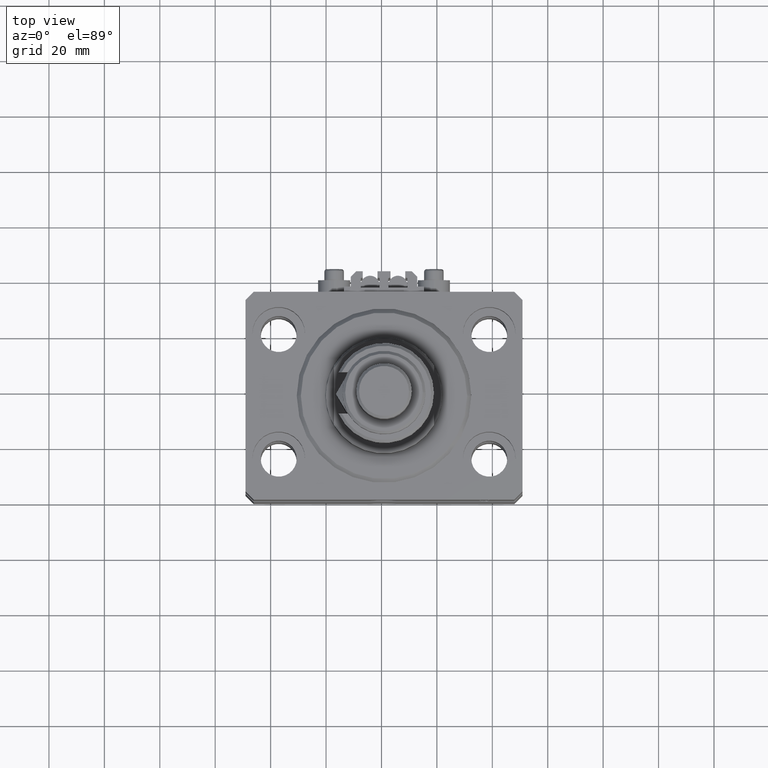
[diagram: clean part render]
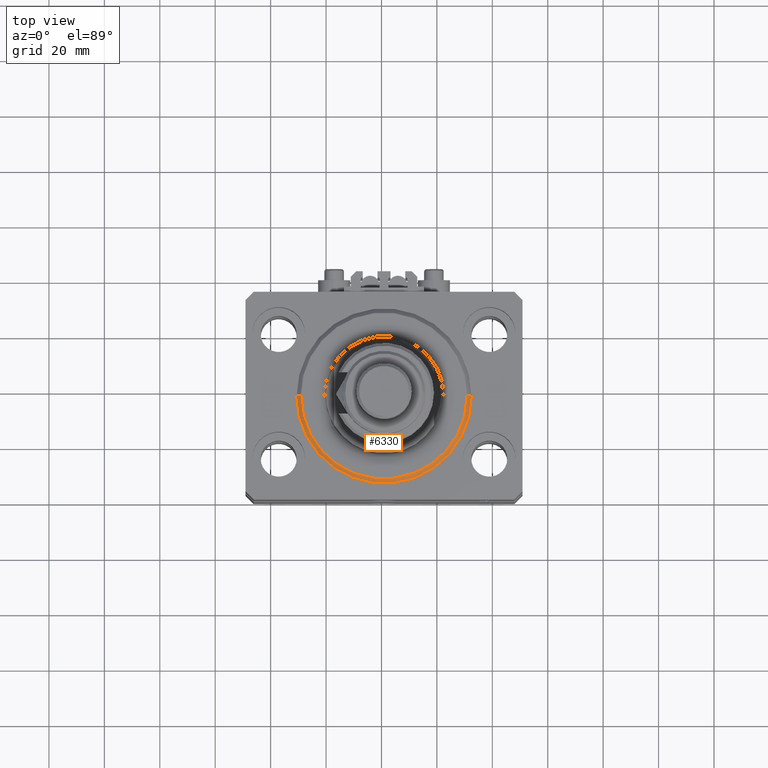
[diagram: same view with one face highlighted and labeled with its STEP entity id]
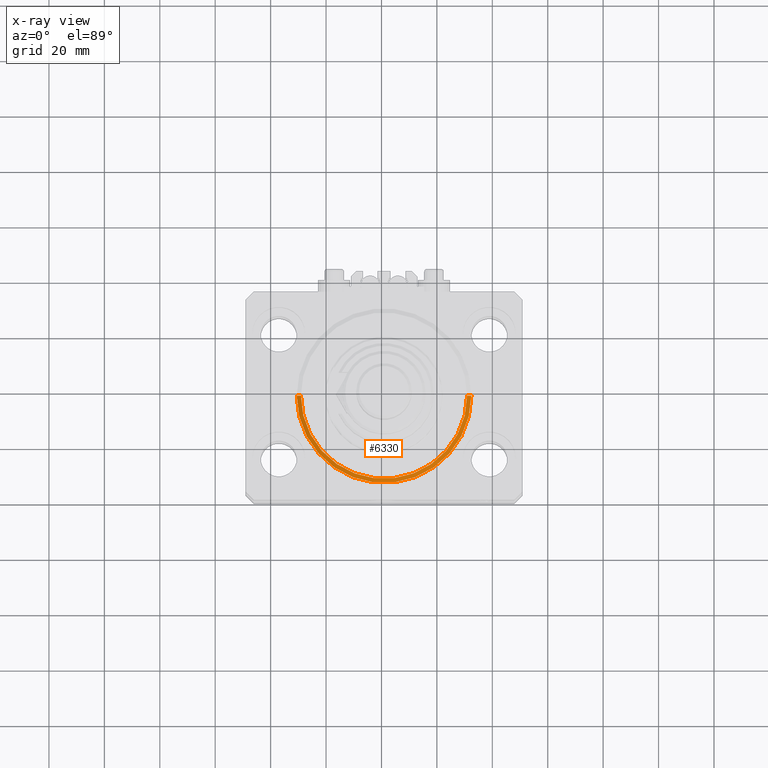
[diagram: x-ray of the same camera — body ghosted, the highlighted face saturated]
A machine part, top view. The second image highlights one B-rep face of the part: STEP entity #6330.
The next image is the same camera in x-ray: the body ghosted, the highlighted face saturated — about 0% of this face is hidden behind the body in this view.
In plain terms, the highlighted conical surface has half-angle 45 deg.
Its self-contained STEP definition (entity closure, byte-faithful):
#317 = DIRECTION ( 'NONE',  ( 1.000000000000000000, 0.000000000000000000, 0.000000000000000000 ) ) ;
#397 = CARTESIAN_POINT ( 'NONE',  ( -30.00000000000002132, 3.765788907378112117E-15, 0.000000000000000000 ) ) ;
#577 = FACE_OUTER_BOUND ( 'NONE', #23349, .T. ) ;
#1385 = EDGE_CURVE ( 'NONE', #14518, #29938, #27072, .T. ) ;
#1493 = VECTOR ( 'NONE', #45209, 1000.000000000000114 ) ;
#2231 = DIRECTION ( 'NONE',  ( 1.000000000000000000, 0.000000000000000000, 0.000000000000000000 ) ) ;
#2849 = ORIENTED_EDGE ( 'NONE', *, *, #22658, .F. ) ;
#6159 = LINE ( 'NONE', #36787, #1493 ) ;
#6330 = ADVANCED_FACE ( 'NONE', ( #577 ), #21421, .T. ) ;
#9510 = CARTESIAN_POINT ( 'NONE',  ( 31.50000000000000000, 3.857637417314162689E-15, 1.499999999999980460 ) ) ;
#10611 = CARTESIAN_POINT ( 'NONE',  ( 0.000000000000000000, 0.000000000000000000, 0.000000000000000000 ) ) ;
#10874 = DIRECTION ( 'NONE',  ( -0.000000000000000000, -0.000000000000000000, -1.000000000000000000 ) ) ;
#11387 = AXIS2_PLACEMENT_3D ( 'NONE', #16818, #36716, #317 ) ;
#11756 = CARTESIAN_POINT ( 'NONE',  ( -31.50000000000000000, 3.857637417314162689E-15, 1.499999999999980460 ) ) ;
#12009 = LINE ( 'NONE', #11756, #47067 ) ;
#12523 = DIRECTION ( 'NONE',  ( -0.7071067811865474617, 8.659560562354932858E-17, 0.7071067811865474617 ) ) ;
#12986 = EDGE_CURVE ( 'NONE', #14518, #27529, #6159, .T. ) ;
#14319 = ORIENTED_EDGE ( 'NONE', *, *, #51211, .F. ) ;
#14518 = VERTEX_POINT ( 'NONE', #17814 ) ;
#16818 = CARTESIAN_POINT ( 'NONE',  ( 0.000000000000000000, 0.000000000000000000, 1.499999999999980460 ) ) ;
#17814 = CARTESIAN_POINT ( 'NONE',  ( 30.00000000000002132, 0.000000000000000000, 0.000000000000000000 ) ) ;
#21421 = CONICAL_SURFACE ( 'NONE', #11387, 31.50000000000000000, 0.7853981633974482790 ) ;
#22658 = EDGE_CURVE ( 'NONE', #29938, #42355, #12009, .T. ) ;
#23349 = EDGE_LOOP ( 'NONE', ( #2849, #32927, #41314, #14319 ) ) ;
#27072 = CIRCLE ( 'NONE', #30396, 30.00000000000002132 ) ;
#27529 = VERTEX_POINT ( 'NONE', #9510 ) ;
#28906 = CARTESIAN_POINT ( 'NONE',  ( -31.50000000000000000, 0.000000000000000000, 1.499999999999980460 ) ) ;
#29938 = VERTEX_POINT ( 'NONE', #397 ) ;
#30396 = AXIS2_PLACEMENT_3D ( 'NONE', #10611, #10874, #2231 ) ;
#32927 = ORIENTED_EDGE ( 'NONE', *, *, #1385, .F. ) ;
#34179 = CARTESIAN_POINT ( 'NONE',  ( 0.000000000000000000, 0.000000000000000000, 1.499999999999980460 ) ) ;
#36716 = DIRECTION ( 'NONE',  ( -0.000000000000000000, -0.000000000000000000, 1.000000000000000000 ) ) ;
#36787 = CARTESIAN_POINT ( 'NONE',  ( 31.50000000000000000, 0.000000000000000000, 1.499999999999980460 ) ) ;
#41314 = ORIENTED_EDGE ( 'NONE', *, *, #12986, .T. ) ;
#42355 = VERTEX_POINT ( 'NONE', #28906 ) ;
#43255 = AXIS2_PLACEMENT_3D ( 'NONE', #34179, #50207, #46265 ) ;
#44106 = CIRCLE ( 'NONE', #43255, 31.50000000000000000 ) ;
#45209 = DIRECTION ( 'NONE',  ( 0.7071067811865474617, 0.000000000000000000, 0.7071067811865474617 ) ) ;
#46265 = DIRECTION ( 'NONE',  ( 1.000000000000000000, 0.000000000000000000, 0.000000000000000000 ) ) ;
#47067 = VECTOR ( 'NONE', #12523, 1000.000000000000114 ) ;
#50207 = DIRECTION ( 'NONE',  ( -0.000000000000000000, -0.000000000000000000, 1.000000000000000000 ) ) ;
#51211 = EDGE_CURVE ( 'NONE', #42355, #27529, #44106, .T. ) ;